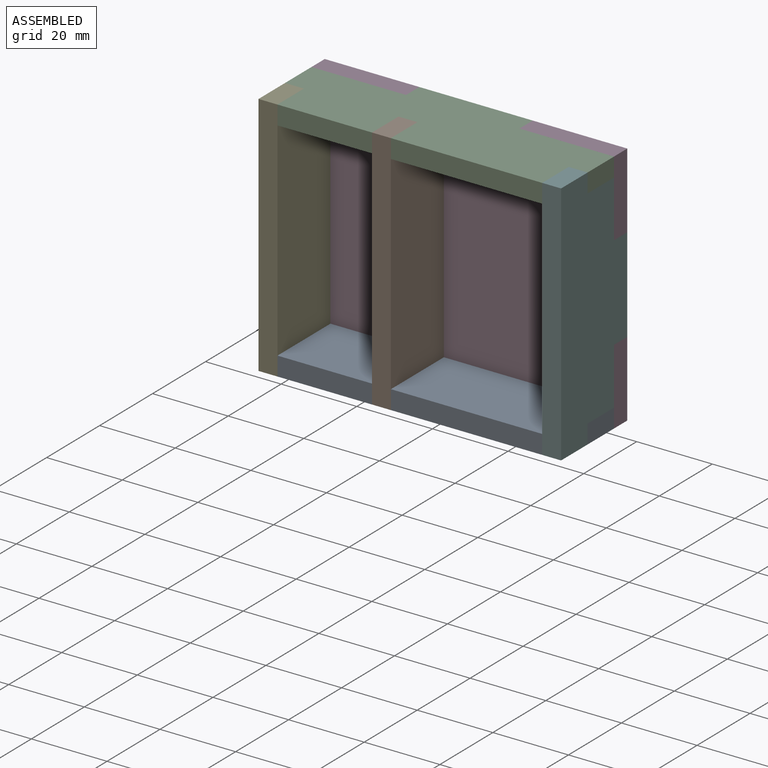
[diagram: assembled view]
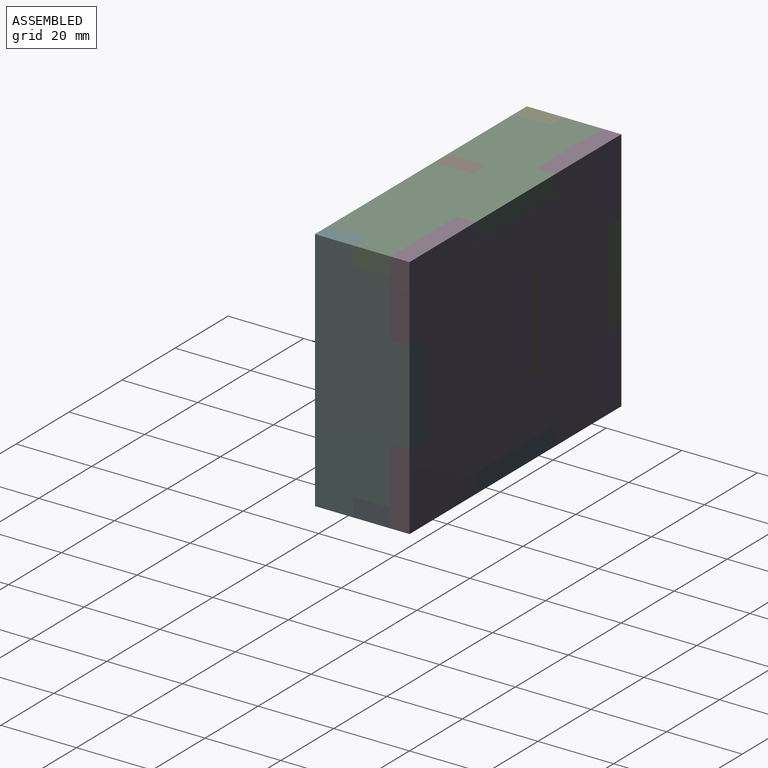
[diagram: assembled view, second angle]
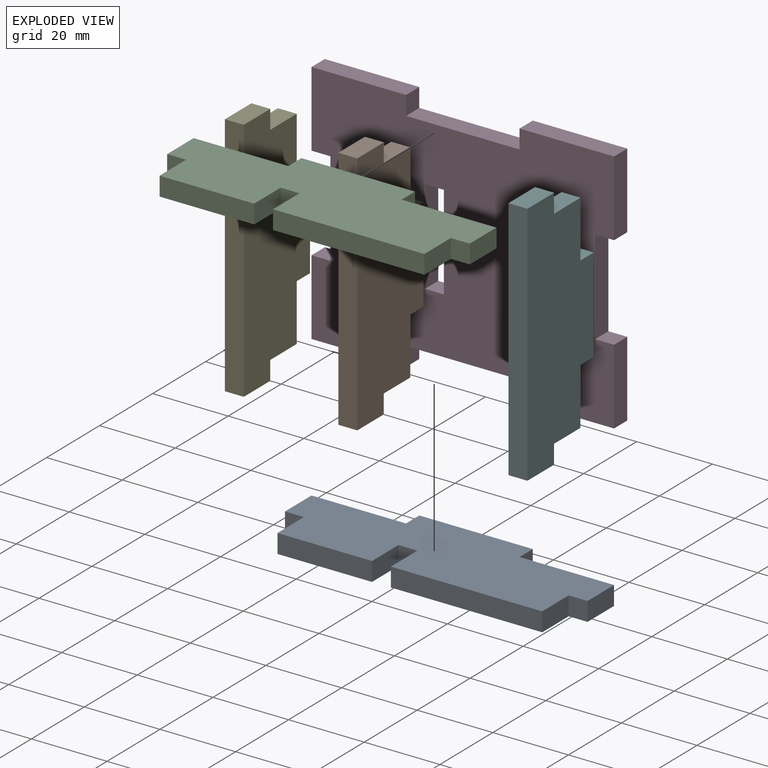
[diagram: exploded view]
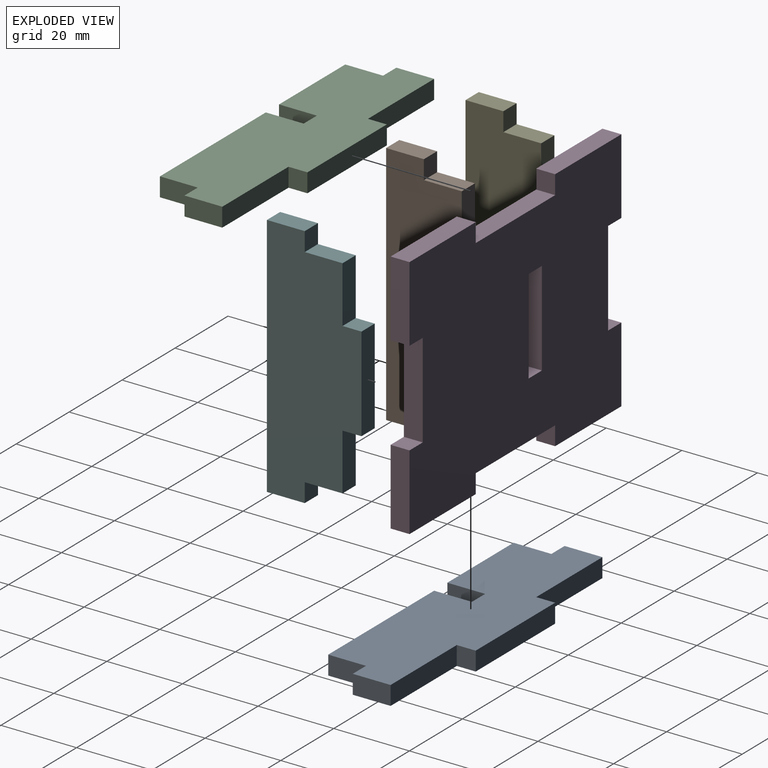
[diagram: exploded view, second angle]
ASSEMBLY  parts=6 mates=15
PART A: 18 faces, bbox 80x5x25 mm
  f0: plane 25x5mm, normal (0,0,1), area 125mm2, adj f5,f6,f9,f15
  f1: plane 40x5mm, normal (0,0,1), area 200mm2, adj f5,f6,f11,f13
  f2: plane 10x5mm, normal (-1,0,0), area 50mm2, adj f5,f6,f7,f14
  f3: plane 30x5mm, normal (0,0,-1), area 150mm2, adj f5,f6,f8,f17
  f4: plane 10x5mm, normal (1,0,0), area 50mm2, adj f5,f6,f12,f16
  f5: plane 80x25mm, normal (0,-1,0), area 1600mm2, adj f0,f1,f2,f3,f4,f7,f8,f9
  f6: plane 80x25mm, normal (0,1,0), area 1600mm2, adj f0,f1,f2,f3,f4,f7,f8,f9
  f7: plane 25x5mm, normal (0,0,-1), area 125mm2, adj f2,f5,f6,f8
  f8: plane 5x5mm, normal (-1,0,0), area 25mm2, adj f3,f5,f6,f7
  f9: plane 10x5mm, normal (1,0,0), area 50mm2, adj f0,f5,f6,f10
  f10: plane 5x5mm, normal (0,0,1), area 25mm2, adj f5,f6,f9,f11
  f11: plane 10x5mm, normal (-1,0,0), area 50mm2, adj f1,f5,f6,f10
  f12: plane 5x5mm, normal (0,0,1), area 25mm2, adj f4,f5,f6,f13
  f13: plane 10x5mm, normal (1,0,0), area 50mm2, adj f1,f5,f6,f12
  f14: plane 5x5mm, normal (0,0,1), area 25mm2, adj f2,f5,f6,f15
  f15: plane 10x5mm, normal (-1,0,0), area 50mm2, adj f0,f5,f6,f14
  f16: plane 25x5mm, normal (0,0,-1), area 125mm2, adj f4,f5,f6,f17
  f17: plane 5x5mm, normal (1,0,0), area 25mm2, adj f3,f5,f6,f16
PART B: 14 faces, bbox 65x5x25 mm
  f0: plane 10x5mm, normal (-1,0,0), area 50mm2, adj f3,f4,f5,f10
  f1: plane 25x5mm, normal (0,0,-1), area 125mm2, adj f3,f4,f9,f11
  f2: plane 10x5mm, normal (1,0,0), area 50mm2, adj f3,f4,f5,f6
  f3: plane 65x25mm, normal (0,-1,0), area 1325mm2, adj f0,f1,f2,f5,f6,f7,f8,f9
  f4: plane 65x25mm, normal (0,1,0), area 1325mm2, adj f0,f1,f2,f5,f6,f7,f8,f9
  f5: plane 65x5mm, normal (0,0,1), area 325mm2, adj f0,f2,f3,f4
  f6: plane 5x5mm, normal (0,0,-1), area 25mm2, adj f2,f3,f4,f7
  f7: plane 10x5mm, normal (1,0,0), area 50mm2, adj f3,f4,f6,f8
  f8: plane 15x5mm, normal (0,0,-1), area 75mm2, adj f3,f4,f7,f9
  f9: plane 5x5mm, normal (1,0,0), area 25mm2, adj f1,f3,f4,f8
  f10: plane 5x5mm, normal (0,0,-1), area 25mm2, adj f0,f3,f4,f13
  f11: plane 5x5mm, normal (-1,0,0), area 25mm2, adj f1,f3,f4,f12
  f12: plane 15x5mm, normal (0,0,-1), area 75mm2, adj f3,f4,f11,f13
  f13: plane 10x5mm, normal (-1,0,0), area 50mm2, adj f3,f4,f10,f12
PART C: same geometry as A
PART D: 26 faces, bbox 80x5x65 mm
  f0: plane 25x5mm, normal (0,0,1), area 125mm2, adj f4,f5,f9,f23
  f1: plane 20x5mm, normal (-1,0,0), area 100mm2, adj f4,f5,f8,f10
  f2: plane 25x5mm, normal (0,0,-1), area 125mm2, adj f3,f4,f5,f15
  f3: plane 20x5mm, normal (1,0,0), area 100mm2, adj f2,f4,f5,f17
  f4: plane 80x65mm, normal (0,-1,0), area 4525mm2, adj f0,f1,f2,f3,f6,f7,f8,f9
  f5: plane 80x65mm, normal (0,1,0), area 4525mm2, adj f0,f1,f2,f3,f6,f7,f8,f9
  f6: plane 25x5mm, normal (0,0,1), area 125mm2, adj f4,f5,f7,f24
  f7: plane 20x5mm, normal (-1,0,0), area 100mm2, adj f4,f5,f6,f12
  f8: plane 25x5mm, normal (0,0,-1), area 125mm2, adj f1,f4,f5,f14
  f9: plane 20x5mm, normal (1,0,0), area 100mm2, adj f0,f4,f5,f18
  f10: plane 5x5mm, normal (0,0,1), area 25mm2, adj f1,f4,f5,f11
  f11: plane 25x5mm, normal (-1,0,0), area 125mm2, adj f4,f5,f10,f12
  f12: plane 5x5mm, normal (0,0,-1), area 25mm2, adj f4,f5,f7,f11
  f13: plane 30x5mm, normal (0,0,-1), area 150mm2, adj f4,f5,f14,f15
  f14: plane 5x5mm, normal (1,0,0), area 25mm2, adj f4,f5,f8,f13
  f15: plane 5x5mm, normal (-1,0,0), area 25mm2, adj f2,f4,f5,f13
  f16: plane 25x5mm, normal (1,0,0), area 125mm2, adj f4,f5,f17,f18
  f17: plane 5x5mm, normal (0,0,1), area 25mm2, adj f3,f4,f5,f16
  f18: plane 5x5mm, normal (0,0,-1), area 25mm2, adj f4,f5,f9,f16
  f19: plane 25x5mm, normal (1,0,0), area 125mm2, adj f4,f5,f20,f22
  f20: plane 5x5mm, normal (0,0,1), area 25mm2, adj f4,f5,f19,f21
  f21: plane 25x5mm, normal (-1,0,0), area 125mm2, adj f4,f5,f20,f22
  f22: plane 5x5mm, normal (0,0,-1), area 25mm2, adj f4,f5,f19,f21
  f23: plane 5x5mm, normal (-1,0,0), area 25mm2, adj f0,f4,f5,f25
  f24: plane 5x5mm, normal (1,0,0), area 25mm2, adj f4,f5,f6,f25
  f25: plane 30x5mm, normal (0,0,1), area 150mm2, adj f4,f5,f23,f24
PART E: same geometry as B
PART F: same geometry as B
PLACE A rot(axis=(1,0,0),90deg) t=(-39.14,11.66,-26.71)mm
PLACE B rot(axis=(0.58,0.58,-0.58),120deg) t=(-38.74,1.69,6.31)mm
PLACE C rot(axis=(1,0,0),90deg) t=(-39.14,11.66,33.29)mm
PLACE D t=(-37.64,10.42,1.43)mm
PLACE E rot(axis=(0.58,-0.58,0.58),120deg) t=(-73.74,1.69,-4.72)mm
PLACE F rot(axis=(0.58,0.58,-0.58),120deg) t=(6.26,1.69,6.31)mm
MATE planar B.f3 <-> A.f9  axis (-1,0,0) through (-43.74,-3.78,0.79)mm
MATE planar C.f7 <-> D.f4  axis (0,1,0) through (-61.24,5.42,30.79)mm
MATE planar A.f5 <-> D.f2  axis (0,0,-1) through (-33.51,-2.94,-31.71)mm
MATE planar C.f6 <-> D.f6  axis (0,0,1) through (-33.51,-2.94,33.29)mm
MATE planar B.f12 <-> D.f4  axis (0,1,0) through (-41.24,5.42,20.79)mm
MATE planar F.f12 <-> D.f4  axis (0,1,0) through (3.76,5.42,20.79)mm
MATE planar A.f4 <-> D.f3  axis (1,0,0) through (6.26,0.42,-29.21)mm
MATE planar E.f0 <-> A.f5  axis (0,0,-1) through (-71.24,-9.58,-31.71)mm
MATE planar B.f13 <-> C.f5  axis (0,0,1) through (-41.24,0.42,28.29)mm
MATE planar F.f7 <-> A.f6  axis (0,0,-1) through (3.76,0.42,-26.71)mm
MATE planar E.f8 <-> D.f4  axis (0,1,0) through (-71.24,5.42,20.79)mm
MATE planar C.f2 <-> D.f7  axis (-1,0,0) through (-73.74,0.42,30.79)mm
MATE planar F.f4 <-> D.f3  axis (1,0,0) through (6.26,-3.78,0.79)mm
MATE planar A.f16 <-> D.f4  axis (0,1,0) through (-6.24,5.42,-29.21)mm
MATE planar E.f4 <-> D.f1  axis (-1,0,0) through (-73.74,-3.78,0.79)mm
